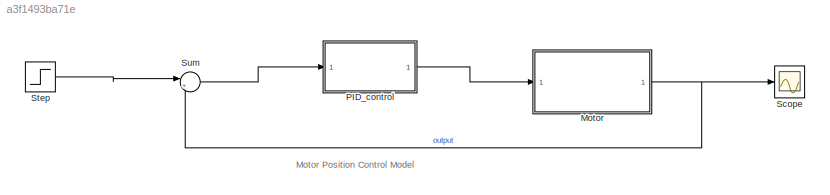
MODEL slx_a3f1493ba71e
KIND model
CONFIG AbsTol = auto
CONFIG EnableMultiTasking = off
CONFIG FixedStep = auto
CONFIG MaxStep = auto
CONFIG MinStep = auto
CONFIG RelTol = 1e-3
CONFIG SampleTimeConstraint = Unconstrained
CONFIG SolverName = VariableStepAuto
CONFIG StartTime = 0.0
CONFIG StopTime = 10.0
BLOCK [ModelReference] Motor
  ModelNameDialog = Motor_pos
  ModelReferenceVersion = 1.6
  Ports = [1, 1]
BLOCK [ModelReference] PID_control
  ModelNameDialog = PID_control
  ModelReferenceVersion = 1.6
  Ports = [1, 1]
BLOCK [Scope] Scope
  Floating = off
  NumInputPorts = 1
  Ports = [1]
  ScopeSpecificationString = Simulink.scopes.TimeScopeBlockCfg('CurrentConfiguration', extmgr.ConfigurationSet(extmgr.Configuration('Core','General UI',true),extmgr.Configuration('Core','Source UI',true),extmgr.Configuration('Sources','WiredSimulink',true),extmgr.Configuration('Visuals','Time Domain',true,'SerializedDisplays',{struct('MinYLimReal','-73.8949','MaxYLimReal','665.05411','YLabelReal','','MinYLimMag','0.00000','Ma...<+1385ch>
BLOCK [Step] Step
  After = 500
  SampleTime = 0
BLOCK [Sum] Sum
  Inputs = |+-
  Ports = [2, 1]
ANNOTATION (root): Motor Position Control Model
NET Motor:1 -> Scope:1, Sum:2
LINE PID_control:1 -> Motor:1
LINE Step:1 -> Sum:1
LINE Sum:1 -> PID_control:1
note: NET lines group one-source signal fan-out (src -> all destinations, sorted); 1:1 wires keep LINE
